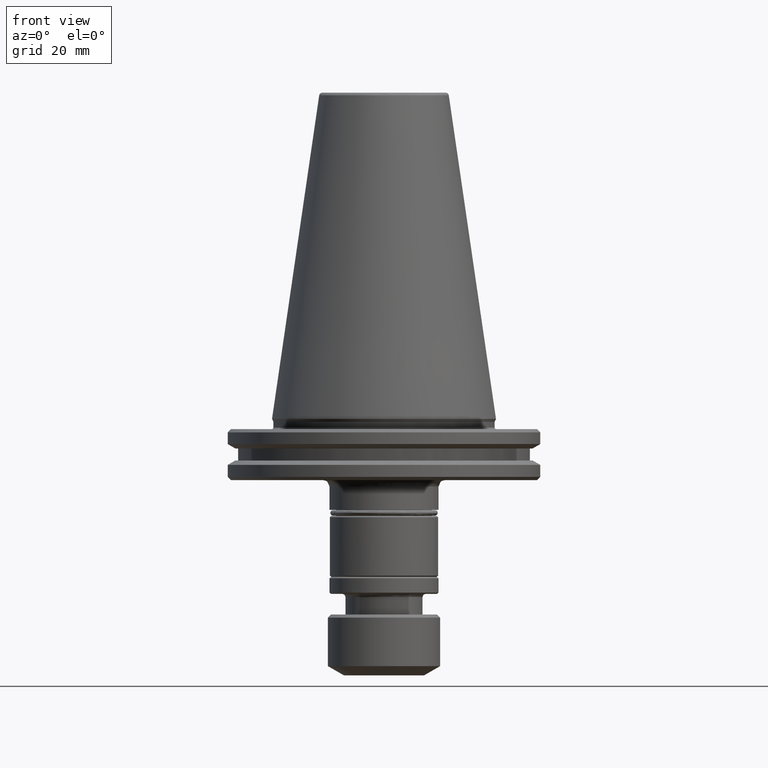
[diagram: clean part render]
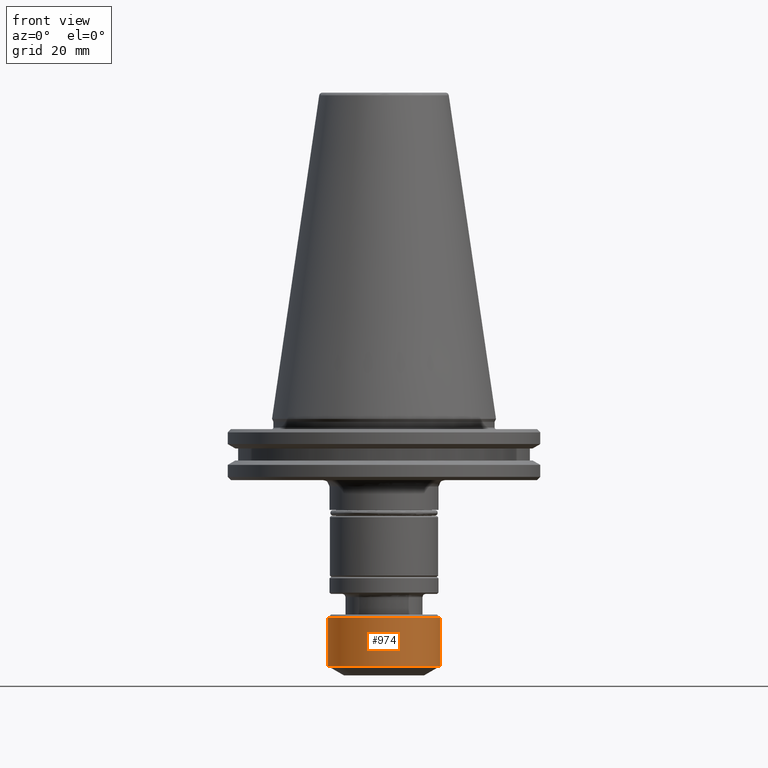
[diagram: same view with one face highlighted and labeled with its STEP entity id]
A machine part, front view. The second image highlights one B-rep face of the part: STEP entity #974.
In plain terms, the highlighted cylindrical surface (partial cylindrical patch) has radius 17.5 mm, axis along (0, 0, 1).
Its self-contained STEP definition (entity closure, byte-faithful):
#31 = DIRECTION ( 'NONE',  ( -0.0000000000000000000, -0.0000000000000000000, 1.000000000000000000 ) ) ;
#39 = CARTESIAN_POINT ( 'NONE',  ( 0.0000000000000000000, 0.0000000000000000000, -62.00000000000000000 ) ) ;
#69 = EDGE_CURVE ( 'NONE', #952, #2618, #1428, .T. ) ;
#80 = DIRECTION ( 'NONE',  ( 0.0000000000000000000, 0.0000000000000000000, 1.000000000000000000 ) ) ;
#99 = CARTESIAN_POINT ( 'NONE',  ( -17.50000000000000000, 2.143131898507868200E-015, -62.00000000000000000 ) ) ;
#139 = VERTEX_POINT ( 'NONE', #2568 ) ;
#196 = ORIENTED_EDGE ( 'NONE', *, *, #785, .T. ) ;
#402 = CARTESIAN_POINT ( 'NONE',  ( 17.50000000000000000, 0.0000000000000000000, 0.0000000000000000000 ) ) ;
#422 = CARTESIAN_POINT ( 'NONE',  ( 17.50000000000000000, 0.0000000000000000000, -62.00000000000000000 ) ) ;
#462 = EDGE_LOOP ( 'NONE', ( #1302, #196, #2524, #1543 ) ) ;
#563 = VECTOR ( 'NONE', #80, 1000.000000000000000 ) ;
#785 = EDGE_CURVE ( 'NONE', #952, #139, #1397, .T. ) ;
#880 = AXIS2_PLACEMENT_3D ( 'NONE', #1545, #1507, #1551 ) ;
#952 = VERTEX_POINT ( 'NONE', #1616 ) ;
#974 = ADVANCED_FACE ( 'NONE', ( #1364 ), #2587, .T. ) ;
#1218 = AXIS2_PLACEMENT_3D ( 'NONE', #1732, #1726, #1718 ) ;
#1302 = ORIENTED_EDGE ( 'NONE', *, *, #69, .F. ) ;
#1364 = FACE_OUTER_BOUND ( 'NONE', #462, .T. ) ;
#1397 = CIRCLE ( 'NONE', #1218, 17.50000000000000000 ) ;
#1428 = LINE ( 'NONE', #2579, #563 ) ;
#1507 = DIRECTION ( 'NONE',  ( 0.0000000000000000000, 0.0000000000000000000, 1.000000000000000000 ) ) ;
#1533 = DIRECTION ( 'NONE',  ( -1.000000000000000000, 0.0000000000000000000, 0.0000000000000000000 ) ) ;
#1543 = ORIENTED_EDGE ( 'NONE', *, *, #2060, .F. ) ;
#1545 = CARTESIAN_POINT ( 'NONE',  ( 0.0000000000000000000, 0.0000000000000000000, 0.0000000000000000000 ) ) ;
#1551 = DIRECTION ( 'NONE',  ( 1.000000000000000000, 0.0000000000000000000, 0.0000000000000000000 ) ) ;
#1610 = VECTOR ( 'NONE', #2516, 1000.000000000000000 ) ;
#1616 = CARTESIAN_POINT ( 'NONE',  ( -17.50000000000000000, 2.143131898507868200E-015, -77.11324865405183000 ) ) ;
#1718 = DIRECTION ( 'NONE',  ( 1.000000000000000000, 0.0000000000000000000, 0.0000000000000000000 ) ) ;
#1726 = DIRECTION ( 'NONE',  ( 0.0000000000000000000, 0.0000000000000000000, 1.000000000000000000 ) ) ;
#1732 = CARTESIAN_POINT ( 'NONE',  ( 0.0000000000000000000, 0.0000000000000000000, -77.11324865405183000 ) ) ;
#1751 = AXIS2_PLACEMENT_3D ( 'NONE', #39, #31, #1533 ) ;
#2024 = CIRCLE ( 'NONE', #1751, 17.50000000000000000 ) ;
#2060 = EDGE_CURVE ( 'NONE', #2618, #2241, #2024, .T. ) ;
#2106 = LINE ( 'NONE', #402, #1610 ) ;
#2241 = VERTEX_POINT ( 'NONE', #422 ) ;
#2361 = EDGE_CURVE ( 'NONE', #139, #2241, #2106, .T. ) ;
#2516 = DIRECTION ( 'NONE',  ( 0.0000000000000000000, 0.0000000000000000000, 1.000000000000000000 ) ) ;
#2524 = ORIENTED_EDGE ( 'NONE', *, *, #2361, .T. ) ;
#2568 = CARTESIAN_POINT ( 'NONE',  ( 17.50000000000000000, 0.0000000000000000000, -77.11324865405183000 ) ) ;
#2579 = CARTESIAN_POINT ( 'NONE',  ( -17.50000000000000000, 2.143131898507868200E-015, 0.0000000000000000000 ) ) ;
#2587 = CYLINDRICAL_SURFACE ( 'NONE', #880, 17.50000000000000000 ) ;
#2618 = VERTEX_POINT ( 'NONE', #99 ) ;